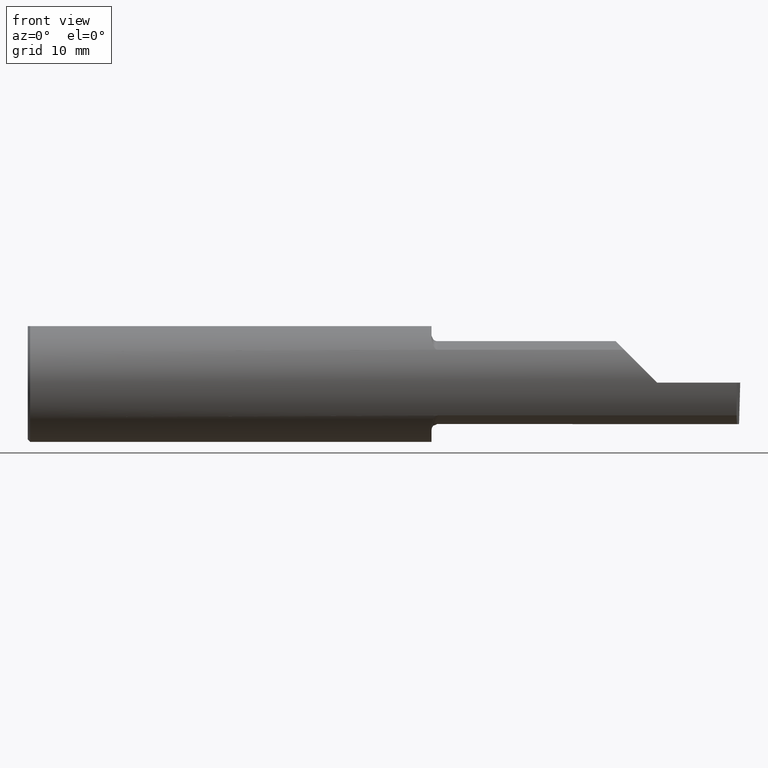
[diagram: clean part render]
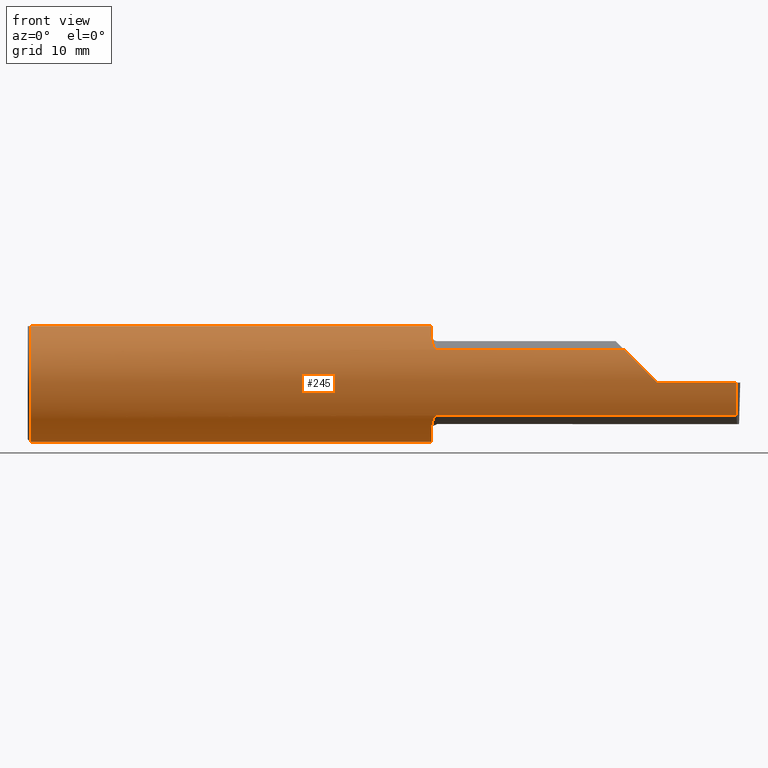
[diagram: same view with one face highlighted and labeled with its STEP entity id]
A machine part, front view. The second image highlights one B-rep face of the part: STEP entity #245.
In plain terms, the highlighted cylindrical surface (partial cylindrical patch) has radius 6.3462 mm, axis along (-1, -0, -0).
Its self-contained STEP definition (entity closure, byte-faithful):
#25 = DIRECTION ( 'NONE',  ( 1.000000000000000000, 4.482410818444318395E-17, 0.000000000000000000 ) ) ;
#27 = EDGE_CURVE ( 'NONE', #94, #481, #57, .T. ) ;
#32 = LINE ( 'NONE', #535, #318 ) ;
#35 = CARTESIAN_POINT ( 'NONE',  ( 1.700000000000000178, 0.07650098038587520299, 0.2378499999999998671 ) ) ;
#40 = DIRECTION ( 'NONE',  ( 0.000000000000000000, 1.000000000000000000, 0.000000000000000000 ) ) ;
#46 = CARTESIAN_POINT ( 'NONE',  ( 1.723329956043142763, -0.2080850024798590603, 0.1382955322595676440 ) ) ;
#52 = CARTESIAN_POINT ( 'NONE',  ( 2.283868309999999902, -0.2080850024789289432, -0.1382955322609668858 ) ) ;
#57 = LINE ( 'NONE', #224, #81 ) ;
#60 = CARTESIAN_POINT ( 'NONE',  ( 0.009999999999999856226, 0.07650098038587520299, 0.2378499999999998671 ) ) ;
#63 = ORIENTED_EDGE ( 'NONE', *, *, #181, .T. ) ;
#65 = VERTEX_POINT ( 'NONE', #434 ) ;
#72 = ORIENTED_EDGE ( 'NONE', *, *, #663, .T. ) ;
#81 = VECTOR ( 'NONE', #599, 39.37007874015748143 ) ;
#94 = VERTEX_POINT ( 'NONE', #499 ) ;
#95 = CARTESIAN_POINT ( 'NONE',  ( 1.712616400345755574, -0.2024684335577102701, 0.1464246884265638371 ) ) ;
#98 = CARTESIAN_POINT ( 'NONE',  ( 2.984572483848591862, -0.2498499999999999610, -0.04956584089959716749 ) ) ;
#99 = ORIENTED_EDGE ( 'NONE', *, *, #217, .F. ) ;
#103 = DIRECTION ( 'NONE',  ( -1.000000000000000000, -0.000000000000000000, -0.000000000000000000 ) ) ;
#110 = VECTOR ( 'NONE', #490, 39.37007874015748143 ) ;
#112 = CARTESIAN_POINT ( 'NONE',  ( 0.009999999999999856226, 0.000000000000000000, 0.000000000000000000 ) ) ;
#113 = CARTESIAN_POINT ( 'NONE',  ( 1.714302603425052141, -0.2041009206016212996, -0.1441313430770040094 ) ) ;
#118 = CARTESIAN_POINT ( 'NONE',  ( 1.723318040126430084, -0.2080850024789289987, -0.1382955322609667193 ) ) ;
#122 = LINE ( 'NONE', #52, #342 ) ;
#126 = CARTESIAN_POINT ( 'NONE',  ( 2.600434159100402987, -0.2498499999999999610, 0.04956584089959698708 ) ) ;
#136 = CARTESIAN_POINT ( 'NONE',  ( 1.700000000000000178, 0.000000000000000000, 0.000000000000000000 ) ) ;
#141 = EDGE_CURVE ( 'NONE', #65, #432, #247, .T. ) ;
#147 = VERTEX_POINT ( 'NONE', #557 ) ;
#150 = CARTESIAN_POINT ( 'NONE',  ( 1.699999999999999734, -0.1665641037263009827, 0.1863429692936360849 ) ) ;
#156 = VERTEX_POINT ( 'NONE', #205 ) ;
#161 = CARTESIAN_POINT ( 'NONE',  ( 1.725000000000000089, -0.2080850024789290265, -0.1382955322609667748 ) ) ;
#171 = CARTESIAN_POINT ( 'NONE',  ( 0.009999999999999856226, 0.000000000000000000, -0.2498499999999999888 ) ) ;
#181 = EDGE_CURVE ( 'NONE', #147, #564, #32, .T. ) ;
#197 = CARTESIAN_POINT ( 'NONE',  ( 1.700000000000000178, 0.000000000000000000, 0.000000000000000000 ) ) ;
#203 = DIRECTION ( 'NONE',  ( 0.000000000000000000, 0.000000000000000000, -1.000000000000000000 ) ) ;
#205 = CARTESIAN_POINT ( 'NONE',  ( 1.700000000000000178, -0.1616050818046604609, 0.1905487340154980169 ) ) ;
#206 = VERTEX_POINT ( 'NONE', #478 ) ;
#207 =( BOUNDED_CURVE ( )  B_SPLINE_CURVE ( 3, ( #313, #254, #98, #528 ),
 .UNSPECIFIED., .F., .F. ) 
 B_SPLINE_CURVE_WITH_KNOTS ( ( 4, 4 ),
 ( 6.160376845738947615, 6.746954780470606039 ),
 .UNSPECIFIED. ) 
 CURVE ( )  GEOMETRIC_REPRESENTATION_ITEM ( )  RATIONAL_B_SPLINE_CURVE ( ( 1.000000000000000000, 0.9715321379117538569, 0.9715321379117538569, 1.000000000000000000 ) ) 
 REPRESENTATION_ITEM ( '' )  );
#209 = CYLINDRICAL_SURFACE ( 'NONE', #429, 0.2498499999999999888 ) ;
#216 = DIRECTION ( 'NONE',  ( -1.000000000000000000, -0.000000000000000000, -0.000000000000000000 ) ) ;
#217 = EDGE_CURVE ( 'NONE', #156, #94, #522, .T. ) ;
#218 = CARTESIAN_POINT ( 'NONE',  ( 0.000000000000000000, -0.07650098038587520299, 0.2378499999999998671 ) ) ;
#221 = ORIENTED_EDGE ( 'NONE', *, *, #468, .F. ) ;
#224 = CARTESIAN_POINT ( 'NONE',  ( 2.283868309999999902, -0.2080850024789289432, 0.1382955322609668858 ) ) ;
#226 = ORIENTED_EDGE ( 'NONE', *, *, #403, .T. ) ;
#228 = CARTESIAN_POINT ( 'NONE',  ( 0.009999999999999856226, -0.07650098038587520299, 0.2378499999999998671 ) ) ;
#233 = CARTESIAN_POINT ( 'NONE',  ( 2.650000000000000355, -0.2498499999999999610, 4.286263797015729199E-17 ) ) ;
#245 = ADVANCED_FACE ( 'NONE', ( #635 ), #209, .T. ) ;
#247 = B_SPLINE_CURVE_WITH_KNOTS ( 'NONE', 3,
 ( #161, #118, #709, #388, #604, #113, #326, #441, #333, #669, #543, #338 ),
 .UNSPECIFIED., .F., .F.,
 ( 4, 2, 2, 2, 2, 4 ),
 ( 1.964491429041408350E-07, 0.0001260981470478410511, 0.0002519998449527779223, 0.0005038032407626377327, 0.001007410032382356595, 0.002014623615621789331 ),
 .UNSPECIFIED. ) ;
#248 = DIRECTION ( 'NONE',  ( 1.000000000000000000, 0.000000000000000000, 0.000000000000000000 ) ) ;
#252 = CARTESIAN_POINT ( 'NONE',  ( 1.700000000000000178, -0.1616050818046604609, 0.1905487340154980169 ) ) ;
#254 = CARTESIAN_POINT ( 'NONE',  ( 2.984244149176539018, -0.2355204011147991328, -0.09701513151466779894 ) ) ;
#264 = CARTESIAN_POINT ( 'NONE',  ( 1.721718393013768944, -0.2077830475237241181, 0.1387513848711937336 ) ) ;
#266 = EDGE_CURVE ( 'NONE', #340, #312, #616, .T. ) ;
#276 = VERTEX_POINT ( 'NONE', #283 ) ;
#277 = LINE ( 'NONE', #218, #110 ) ;
#282 = ORIENTED_EDGE ( 'NONE', *, *, #396, .F. ) ;
#283 = CARTESIAN_POINT ( 'NONE',  ( 1.700000000000000178, -0.07650098038587527238, 0.2378499999999998671 ) ) ;
#292 = DIRECTION ( 'NONE',  ( 0.000000000000000000, 0.000000000000000000, -1.000000000000000000 ) ) ;
#312 = VERTEX_POINT ( 'NONE', #60 ) ;
#313 = CARTESIAN_POINT ( 'NONE',  ( 2.984481223124517690, -0.2080850024789288877, -0.1382955322609668858 ) ) ;
#317 = CARTESIAN_POINT ( 'NONE',  ( 1.718876997637615034, -0.2068363917296600352, 0.1401586554522230021 ) ) ;
#318 = VECTOR ( 'NONE', #103, 39.37007874015748143 ) ;
#324 = CARTESIAN_POINT ( 'NONE',  ( 2.650000000000000355, -0.2498499999999999610, 4.286263797015729199E-17 ) ) ;
#325 = CARTESIAN_POINT ( 'NONE',  ( 1.717647060162628136, -0.2062109266231182125, 0.1410799729252290580 ) ) ;
#326 = CARTESIAN_POINT ( 'NONE',  ( 1.712579853086619419, -0.2024300470081734915, -0.1464774911482685238 ) ) ;
#333 = CARTESIAN_POINT ( 'NONE',  ( 1.706147634408388569, -0.1932733126899461584, -0.1584637047788197695 ) ) ;
#338 = CARTESIAN_POINT ( 'NONE',  ( 1.700000000000000178, -0.1616050818046604609, -0.1905487340154980169 ) ) ;
#340 = VERTEX_POINT ( 'NONE', #171 ) ;
#342 = VECTOR ( 'NONE', #672, 39.37007874015748143 ) ;
#346 = DIRECTION ( 'NONE',  ( 1.000000000000000000, 0.000000000000000000, 0.000000000000000000 ) ) ;
#351 = VERTEX_POINT ( 'NONE', #228 ) ;
#355 = AXIS2_PLACEMENT_3D ( 'NONE', #136, #517, #575 ) ;
#357 = CIRCLE ( 'NONE', #442, 0.2498499999999999888 ) ;
#360 = CARTESIAN_POINT ( 'NONE',  ( 2.511704467739032332, -0.2080850024789289432, 0.1382955322609668858 ) ) ;
#369 = CARTESIAN_POINT ( 'NONE',  ( 1.702968662030528879, -0.1849684355203377595, 0.1680843977756267815 ) ) ;
#384 = EDGE_CURVE ( 'NONE', #206, #65, #122, .T. ) ;
#388 = CARTESIAN_POINT ( 'NONE',  ( 1.718863362722771182, -0.2068301641248771472, -0.1401678546132360259 ) ) ;
#393 = ORIENTED_EDGE ( 'NONE', *, *, #266, .T. ) ;
#396 = EDGE_CURVE ( 'NONE', #351, #276, #277, .T. ) ;
#403 = EDGE_CURVE ( 'NONE', #564, #481, #562, .T. ) ;
#405 = ORIENTED_EDGE ( 'NONE', *, *, #141, .F. ) ;
#408 = EDGE_CURVE ( 'NONE', #432, #646, #561, .T. ) ;
#410 = CARTESIAN_POINT ( 'NONE',  ( 1.700000000000000178, -0.1616050818046604609, -0.1905487340154980169 ) ) ;
#416 = ORIENTED_EDGE ( 'NONE', *, *, #27, .F. ) ;
#418 = DIRECTION ( 'NONE',  ( 0.000000000000000000, 0.000000000000000000, 1.000000000000000000 ) ) ;
#429 = AXIS2_PLACEMENT_3D ( 'NONE', #703, #216, #418 ) ;
#432 = VERTEX_POINT ( 'NONE', #410 ) ;
#434 = CARTESIAN_POINT ( 'NONE',  ( 1.725000000000000089, -0.2080850024789290265, -0.1382955322609667748 ) ) ;
#437 = CARTESIAN_POINT ( 'NONE',  ( 2.552984868485332015, -0.2355204011147991883, 0.09701513151466749363 ) ) ;
#441 = CARTESIAN_POINT ( 'NONE',  ( 1.708176740666625282, -0.1972027065478072771, -0.1535263573771914469 ) ) ;
#442 = AXIS2_PLACEMENT_3D ( 'NONE', #197, #25, #40 ) ;
#452 = CARTESIAN_POINT ( 'NONE',  ( 0.000000000000000000, 0.07650098038587520299, 0.2378499999999998671 ) ) ;
#462 = DIRECTION ( 'NONE',  ( -1.000000000000000000, -0.000000000000000000, -0.000000000000000000 ) ) ;
#468 = EDGE_CURVE ( 'NONE', #646, #312, #510, .T. ) ;
#478 = CARTESIAN_POINT ( 'NONE',  ( 2.984481223124517690, -0.2080850024789288877, -0.1382955322609668858 ) ) ;
#481 = VERTEX_POINT ( 'NONE', #360 ) ;
#490 = DIRECTION ( 'NONE',  ( 1.000000000000000000, 0.000000000000000000, 0.000000000000000000 ) ) ;
#499 = CARTESIAN_POINT ( 'NONE',  ( 1.725000000000000089, -0.2080850024789289709, 0.1382955322609668580 ) ) ;
#501 = AXIS2_PLACEMENT_3D ( 'NONE', #696, #248, #203 ) ;
#510 = LINE ( 'NONE', #452, #548 ) ;
#514 = ORIENTED_EDGE ( 'NONE', *, *, #574, .T. ) ;
#517 = DIRECTION ( 'NONE',  ( 1.000000000000000000, 4.482410818444318395E-17, 0.000000000000000000 ) ) ;
#522 = B_SPLINE_CURVE_WITH_KNOTS ( 'NONE', 3,
 ( #252, #150, #593, #649, #369, #586, #700, #95, #698, #325, #317, #264, #46, #590 ),
 .UNSPECIFIED., .F., .F.,
 ( 4, 2, 2, 2, 2, 2, 4 ),
 ( 0.0003834465838148161127, 0.0008781406165086714979, 0.001372834649202526883, 0.001867528681896382051, 0.002114875698243305624, 0.002238549206416760688, 0.002362222714590214885 ),
 .UNSPECIFIED. ) ;
#528 = CARTESIAN_POINT ( 'NONE',  ( 2.985438186182187259, -0.2498499999999999888, 0.000000000000000000 ) ) ;
#535 = CARTESIAN_POINT ( 'NONE',  ( 4.499279347985562423E-32, -0.2498499999999999610, 3.673940397442054938E-16 ) ) ;
#543 = CARTESIAN_POINT ( 'NONE',  ( 1.700000000000000178, -0.1716188362992555339, -0.1820560320165480195 ) ) ;
#548 = VECTOR ( 'NONE', #462, 39.37007874015748143 ) ;
#557 = CARTESIAN_POINT ( 'NONE',  ( 2.985438186182187259, -0.2498499999999999888, 0.000000000000000000 ) ) ;
#561 = CIRCLE ( 'NONE', #355, 0.2498499999999999888 ) ;
#562 =( BOUNDED_CURVE ( )  B_SPLINE_CURVE ( 3, ( #233, #126, #437, #662 ),
 .UNSPECIFIED., .F., .T. ) 
 B_SPLINE_CURVE_WITH_KNOTS ( ( 4, 4 ),
 ( 4.712388980384689674, 5.298966915116347209 ),
 .UNSPECIFIED. ) 
 CURVE ( )  GEOMETRIC_REPRESENTATION_ITEM ( )  RATIONAL_B_SPLINE_CURVE ( ( 1.000000000000000000, 0.9715321379117538569, 0.9715321379117538569, 1.000000000000000000 ) ) 
 REPRESENTATION_ITEM ( '' )  );
#564 = VERTEX_POINT ( 'NONE', #324 ) ;
#566 = ORIENTED_EDGE ( 'NONE', *, *, #408, .F. ) ;
#574 = EDGE_CURVE ( 'NONE', #206, #147, #207, .T. ) ;
#575 = DIRECTION ( 'NONE',  ( 0.000000000000000000, 1.000000000000000000, 0.000000000000000000 ) ) ;
#586 = CARTESIAN_POINT ( 'NONE',  ( 1.706159563508733878, -0.1933019864360848439, 0.1584298865564831849 ) ) ;
#588 = EDGE_LOOP ( 'NONE', ( #658, #514, #63, #226, #416, #99, #690, #282, #72, #393, #221, #566, #405 ) ) ;
#590 = CARTESIAN_POINT ( 'NONE',  ( 1.725000000000000089, -0.2080850024789289709, 0.1382955322609668580 ) ) ;
#593 = CARTESIAN_POINT ( 'NONE',  ( 1.700367168219774294, -0.1713400252854603567, 0.1819601557798505576 ) ) ;
#599 = DIRECTION ( 'NONE',  ( 1.000000000000000000, 4.482410818444318395E-17, 0.000000000000000000 ) ) ;
#602 = AXIS2_PLACEMENT_3D ( 'NONE', #112, #346, #292 ) ;
#604 = CARTESIAN_POINT ( 'NONE',  ( 1.717611663768900510, -0.2061921161193829843, -0.1411075319999377797 ) ) ;
#616 = CIRCLE ( 'NONE', #602, 0.2498499999999999888 ) ;
#635 = FACE_OUTER_BOUND ( 'NONE', #588, .T. ) ;
#636 = EDGE_CURVE ( 'NONE', #276, #156, #357, .T. ) ;
#646 = VERTEX_POINT ( 'NONE', #35 ) ;
#649 = CARTESIAN_POINT ( 'NONE',  ( 1.701849548162864156, -0.1805300287242673218, 0.1728462070311780063 ) ) ;
#655 = CIRCLE ( 'NONE', #501, 0.2498499999999999888 ) ;
#658 = ORIENTED_EDGE ( 'NONE', *, *, #384, .F. ) ;
#662 = CARTESIAN_POINT ( 'NONE',  ( 2.511704467739032332, -0.2080850024789289432, 0.1382955322609668858 ) ) ;
#663 = EDGE_CURVE ( 'NONE', #351, #340, #655, .T. ) ;
#669 = CARTESIAN_POINT ( 'NONE',  ( 1.701385488563270432, -0.1808287530430326140, -0.1728790649396286516 ) ) ;
#672 = DIRECTION ( 'NONE',  ( -1.000000000000000000, -4.482410818444318395E-17, -0.000000000000000000 ) ) ;
#690 = ORIENTED_EDGE ( 'NONE', *, *, #636, .F. ) ;
#696 = CARTESIAN_POINT ( 'NONE',  ( 0.009999999999999856226, 0.000000000000000000, 0.000000000000000000 ) ) ;
#698 = CARTESIAN_POINT ( 'NONE',  ( 1.714343523383978996, -0.2041337200786082773, 0.1440846171672512110 ) ) ;
#700 = CARTESIAN_POINT ( 'NONE',  ( 1.708182335268384255, -0.1972192205116131414, 0.1535061413537209818 ) ) ;
#703 = CARTESIAN_POINT ( 'NONE',  ( 0.000000000000000000, 0.000000000000000000, 0.000000000000000000 ) ) ;
#709 = CARTESIAN_POINT ( 'NONE',  ( 1.721700027347578876, -0.2077785947292768720, -0.1387580622202825575 ) ) ;